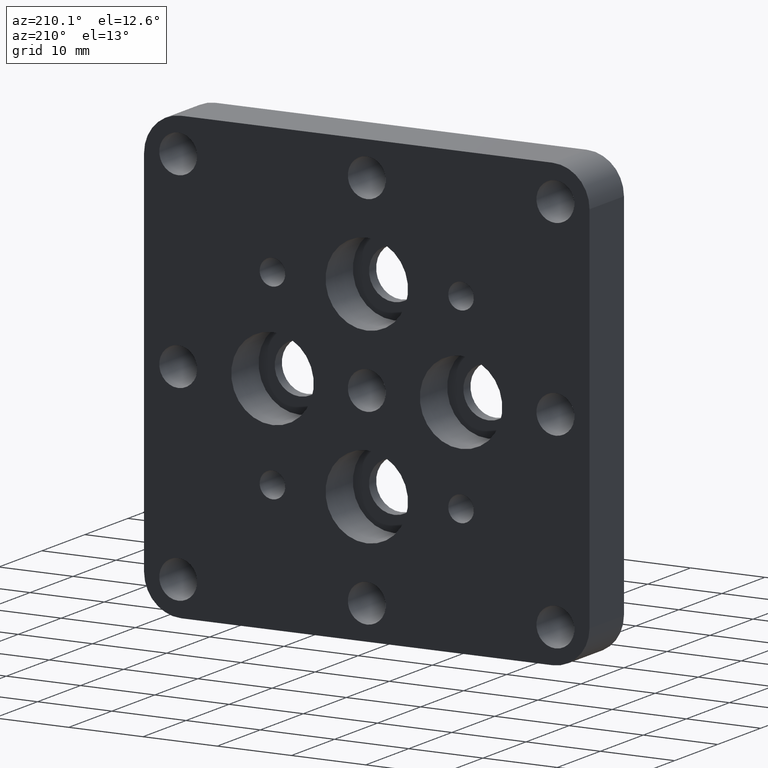
[diagram: clean part render]
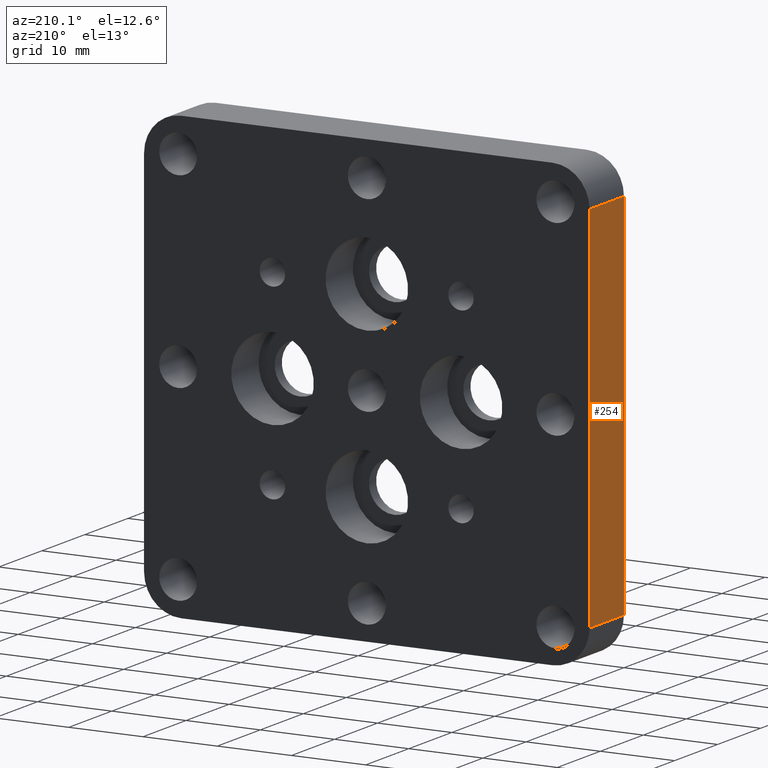
[diagram: same view with one face highlighted and labeled with its STEP entity id]
A machine part, auxiliary view. The second image highlights one B-rep face of the part: STEP entity #254.
In plain terms, the highlighted planar face has unit normal (1, 0, -0).
Its self-contained STEP definition (entity closure, byte-faithful):
#101 = CARTESIAN_POINT ( 'NONE',  ( -30.00000000000000000, 8.000000000000000000, -24.99999999999999300 ) ) ;
#134 = DIRECTION ( 'NONE',  ( 5.782411586589357400E-017, 0.0000000000000000000, 1.000000000000000000 ) ) ;
#232 = ORIENTED_EDGE ( 'NONE', *, *, #1244, .F. ) ;
#235 = CARTESIAN_POINT ( 'NONE',  ( -29.99999999999999600, 8.000000000000000000, 24.99999999999999600 ) ) ;
#244 = VECTOR ( 'NONE', #804, 1000.000000000000000 ) ;
#248 = VECTOR ( 'NONE', #588, 1000.000000000000000 ) ;
#254 = ADVANCED_FACE ( 'NONE', ( #1505 ), #1451, .F. ) ;
#268 = VECTOR ( 'NONE', #134, 1000.000000000000000 ) ;
#270 = CARTESIAN_POINT ( 'NONE',  ( -30.00000000000000000, 8.000000000000000000, -24.99999999999999300 ) ) ;
#330 = EDGE_CURVE ( 'NONE', #1338, #626, #824, .T. ) ;
#396 = CARTESIAN_POINT ( 'NONE',  ( -30.00000000000000000, 8.000000000000000000, -29.99999999999999600 ) ) ;
#486 = DIRECTION ( 'NONE',  ( -0.0000000000000000000, 1.000000000000000000, -0.0000000000000000000 ) ) ;
#535 = DIRECTION ( 'NONE',  ( -5.782411586589358600E-017, 0.0000000000000000000, -1.000000000000000000 ) ) ;
#566 = LINE ( 'NONE', #1361, #268 ) ;
#588 = DIRECTION ( 'NONE',  ( 0.0000000000000000000, -1.000000000000000000, 0.0000000000000000000 ) ) ;
#626 = VERTEX_POINT ( 'NONE', #1249 ) ;
#756 = CARTESIAN_POINT ( 'NONE',  ( -29.99999999999999600, 8.000000000000000000, 24.99999999999999600 ) ) ;
#804 = DIRECTION ( 'NONE',  ( 5.782411586589357400E-017, 0.0000000000000000000, 1.000000000000000000 ) ) ;
#824 = LINE ( 'NONE', #270, #248 ) ;
#885 = AXIS2_PLACEMENT_3D ( 'NONE', #1757, #1472, #535 ) ;
#933 = LINE ( 'NONE', #396, #244 ) ;
#1204 = VERTEX_POINT ( 'NONE', #1726 ) ;
#1244 = EDGE_CURVE ( 'NONE', #1338, #1285, #933, .T. ) ;
#1249 = CARTESIAN_POINT ( 'NONE',  ( -30.00000000000000000, 0.0000000000000000000, -24.99999999999999300 ) ) ;
#1285 = VERTEX_POINT ( 'NONE', #235 ) ;
#1320 = LINE ( 'NONE', #756, #1683 ) ;
#1338 = VERTEX_POINT ( 'NONE', #101 ) ;
#1361 = CARTESIAN_POINT ( 'NONE',  ( -30.00000000000000000, 0.0000000000000000000, -29.99999999999999600 ) ) ;
#1410 = ORIENTED_EDGE ( 'NONE', *, *, #330, .T. ) ;
#1430 = EDGE_CURVE ( 'NONE', #626, #1204, #566, .T. ) ;
#1451 = PLANE ( 'NONE',  #885 ) ;
#1472 = DIRECTION ( 'NONE',  ( 1.000000000000000000, 0.0000000000000000000, -5.782411586589358600E-017 ) ) ;
#1505 = FACE_OUTER_BOUND ( 'NONE', #1855, .T. ) ;
#1527 = EDGE_CURVE ( 'NONE', #1204, #1285, #1320, .T. ) ;
#1550 = ORIENTED_EDGE ( 'NONE', *, *, #1527, .T. ) ;
#1577 = ORIENTED_EDGE ( 'NONE', *, *, #1430, .T. ) ;
#1683 = VECTOR ( 'NONE', #486, 1000.000000000000000 ) ;
#1726 = CARTESIAN_POINT ( 'NONE',  ( -29.99999999999999600, 0.0000000000000000000, 24.99999999999999600 ) ) ;
#1757 = CARTESIAN_POINT ( 'NONE',  ( -30.00000000000000000, 8.000000000000000000, -29.99999999999999600 ) ) ;
#1855 = EDGE_LOOP ( 'NONE', ( #1577, #1550, #232, #1410 ) ) ;